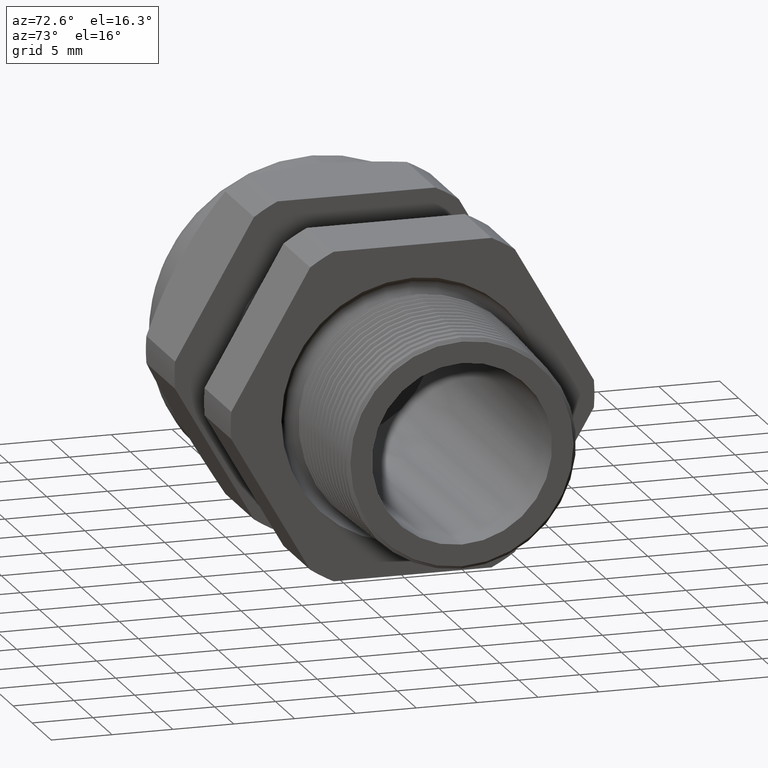
[diagram: clean part render]
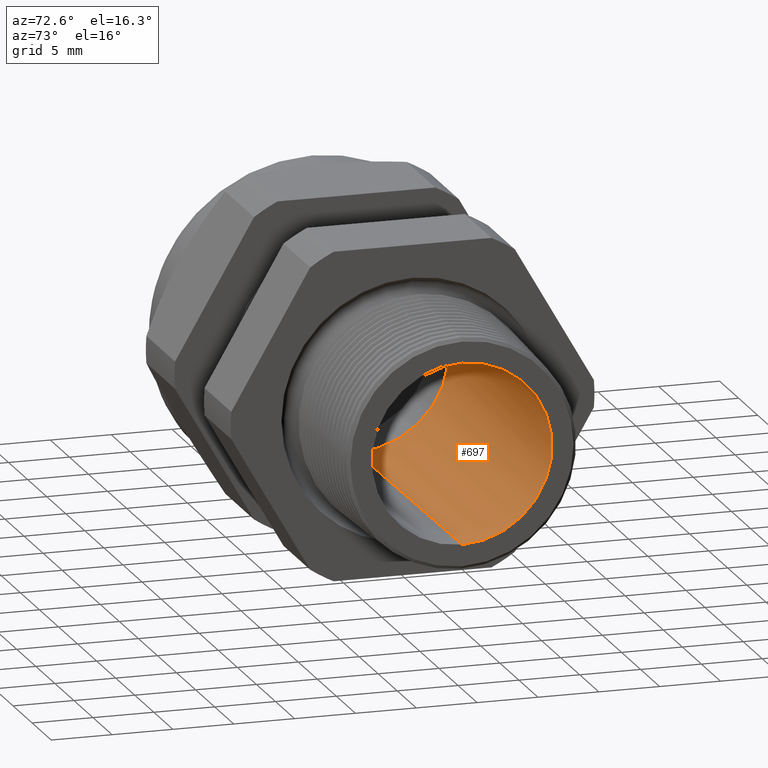
[diagram: same view with one face highlighted and labeled with its STEP entity id]
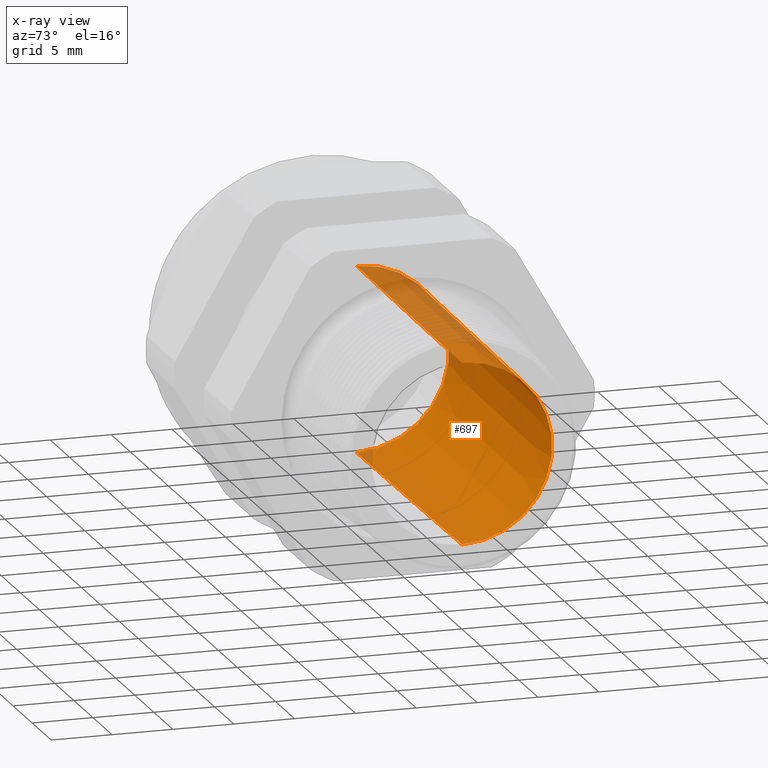
[diagram: x-ray of the same camera — body ghosted, the highlighted face saturated]
A machine part, auxiliary view. The second image highlights one B-rep face of the part: STEP entity #697.
The next image is the same camera in x-ray: the body ghosted, the highlighted face saturated — about 13% of this face is hidden behind the body in this view.
In plain terms, the highlighted conical surface has half-angle 0.424 deg.
Its self-contained STEP definition (entity closure, byte-faithful):
#144 = EDGE_CURVE ( 'NONE', #147, #145, #1872, .T. ) ;
#145 = VERTEX_POINT ( 'NONE', #1863 ) ;
#147 = VERTEX_POINT ( 'NONE', #1862 ) ;
#150 = VERTEX_POINT ( 'NONE', #1856 ) ;
#151 = EDGE_CURVE ( 'NONE', #150, #152, #1855, .T. ) ;
#152 = VERTEX_POINT ( 'NONE', #1851 ) ;
#696 = EDGE_CURVE ( 'NONE', #152, #145, #2973, .T. ) ;
#697 = ADVANCED_FACE ( 'NONE', ( #2968 ), #2967, .F. ) ;
#698 = EDGE_LOOP ( 'NONE', ( #699, #700, #702, #703 ) ) ;
#699 = ORIENTED_EDGE ( 'NONE', *, *, #151, .F. ) ;
#700 = ORIENTED_EDGE ( 'NONE', *, *, #701, .T. ) ;
#701 = EDGE_CURVE ( 'NONE', #150, #147, #2966, .T. ) ;
#702 = ORIENTED_EDGE ( 'NONE', *, *, #144, .T. ) ;
#703 = ORIENTED_EDGE ( 'NONE', *, *, #696, .F. ) ;
#1851 = CARTESIAN_POINT ( 'NONE',  ( -0.8903149606299211000, 0.0000000000000000000, -0.2999999999999999900 ) ) ;
#1852 = DIRECTION ( 'NONE',  ( -0.9999725783074426800, 9.069221333532394100E-019, -0.007405581217251161100 ) ) ;
#1853 = VECTOR ( 'NONE', #1852, 39.37007874015748900 ) ;
#1854 = CARTESIAN_POINT ( 'NONE',  ( -0.8903149606299211000, 3.673940397442058900E-017, -0.2999999999999999900 ) ) ;
#1855 = LINE ( 'NONE', #1854, #1853 ) ;
#1856 = CARTESIAN_POINT ( 'NONE',  ( 0.2000000000000000400, 3.624497503128140000E-017, -0.2919253625864464100 ) ) ;
#1862 = CARTESIAN_POINT ( 'NONE',  ( 0.2000000000000000400, 0.0000000000000000000, 0.2919253625864464100 ) ) ;
#1863 = CARTESIAN_POINT ( 'NONE',  ( -0.8903149606299211000, 3.673940397442058900E-017, 0.2999999999999999900 ) ) ;
#1864 = DIRECTION ( 'NONE',  ( -0.9999725783074426800, 0.0000000000000000000, 0.007405581217251161100 ) ) ;
#1865 = VECTOR ( 'NONE', #1864, 39.37007874015748900 ) ;
#1866 = CARTESIAN_POINT ( 'NONE',  ( -0.8903149606299211000, 0.0000000000000000000, 0.2999999999999999900 ) ) ;
#1872 = LINE ( 'NONE', #1866, #1865 ) ;
#2958 = DIRECTION ( 'NONE',  ( 0.0000000000000000000, 0.0000000000000000000, -1.000000000000000000 ) ) ;
#2959 = DIRECTION ( 'NONE',  ( 1.000000000000000000, 0.0000000000000000000, 0.0000000000000000000 ) ) ;
#2960 = CARTESIAN_POINT ( 'NONE',  ( 0.2000000000000000400, 0.0000000000000000000, 0.0000000000000000000 ) ) ;
#2961 = AXIS2_PLACEMENT_3D ( 'NONE', #2960, #2959, #2958 ) ;
#2962 = DIRECTION ( 'NONE',  ( 0.0000000000000000000, 0.0000000000000000000, 1.000000000000000000 ) ) ;
#2963 = DIRECTION ( 'NONE',  ( -1.000000000000000000, 0.0000000000000000000, 0.0000000000000000000 ) ) ;
#2964 = CARTESIAN_POINT ( 'NONE',  ( -0.8903149606299211000, 0.0000000000000000000, 0.0000000000000000000 ) ) ;
#2965 = AXIS2_PLACEMENT_3D ( 'NONE', #2964, #2963, #2962 ) ;
#2966 = CIRCLE ( 'NONE', #2961, 0.2919253625864464100 ) ;
#2967 = CONICAL_SURFACE ( 'NONE', #2965, 0.2999999999999999900, 0.007405648909184102100 ) ;
#2968 = FACE_OUTER_BOUND ( 'NONE', #698, .T. ) ;
#2969 = DIRECTION ( 'NONE',  ( 0.0000000000000000000, 0.0000000000000000000, -1.000000000000000000 ) ) ;
#2970 = DIRECTION ( 'NONE',  ( 1.000000000000000000, 0.0000000000000000000, 0.0000000000000000000 ) ) ;
#2971 = CARTESIAN_POINT ( 'NONE',  ( -0.8903149606299211000, 0.0000000000000000000, 0.0000000000000000000 ) ) ;
#2972 = AXIS2_PLACEMENT_3D ( 'NONE', #2971, #2970, #2969 ) ;
#2973 = CIRCLE ( 'NONE', #2972, 0.2999999999999999900 ) ;